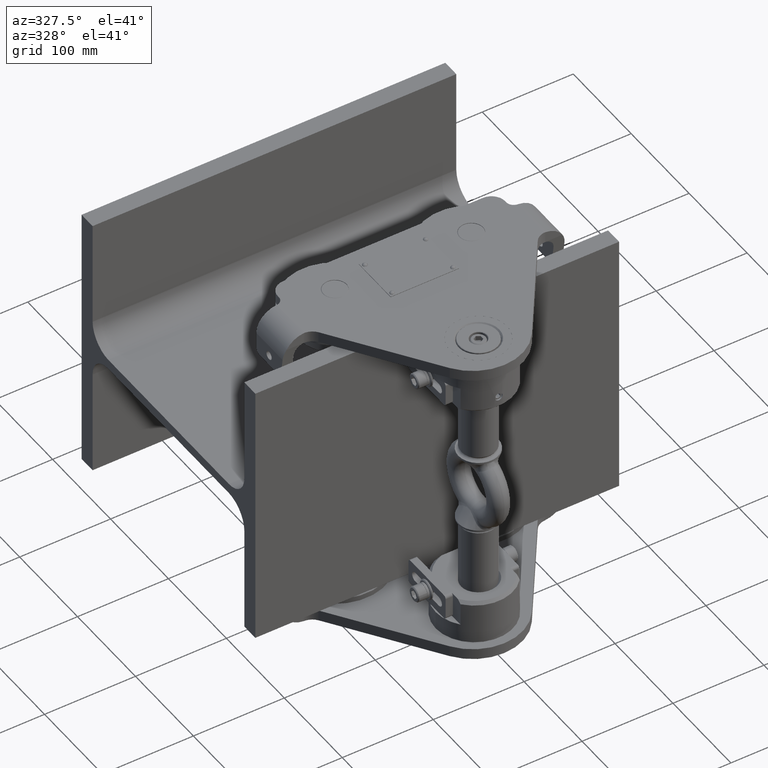
[diagram: clean part render]
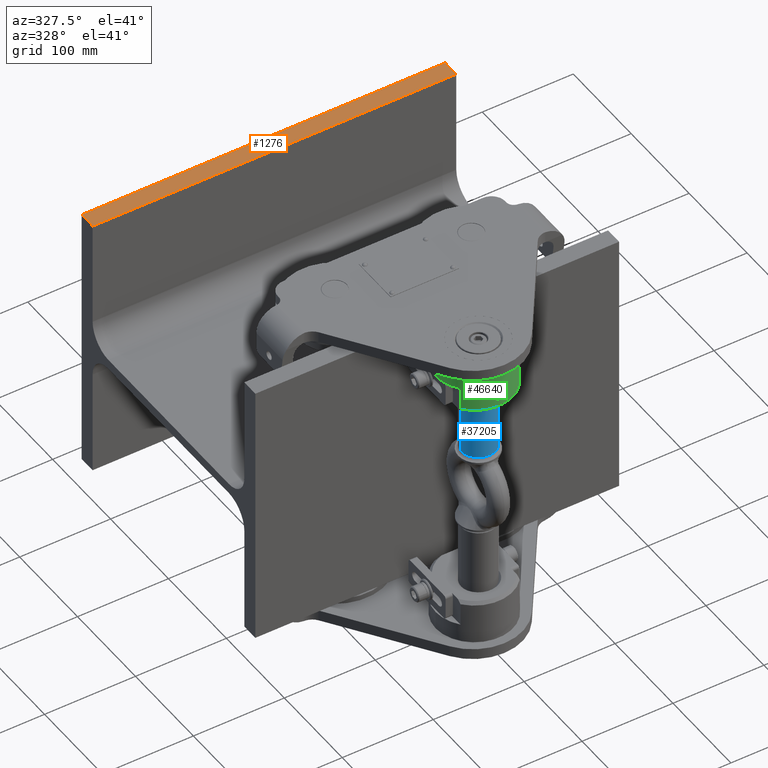
[diagram: same view with three faces highlighted in distinct colors, each labeled with its STEP entity id]
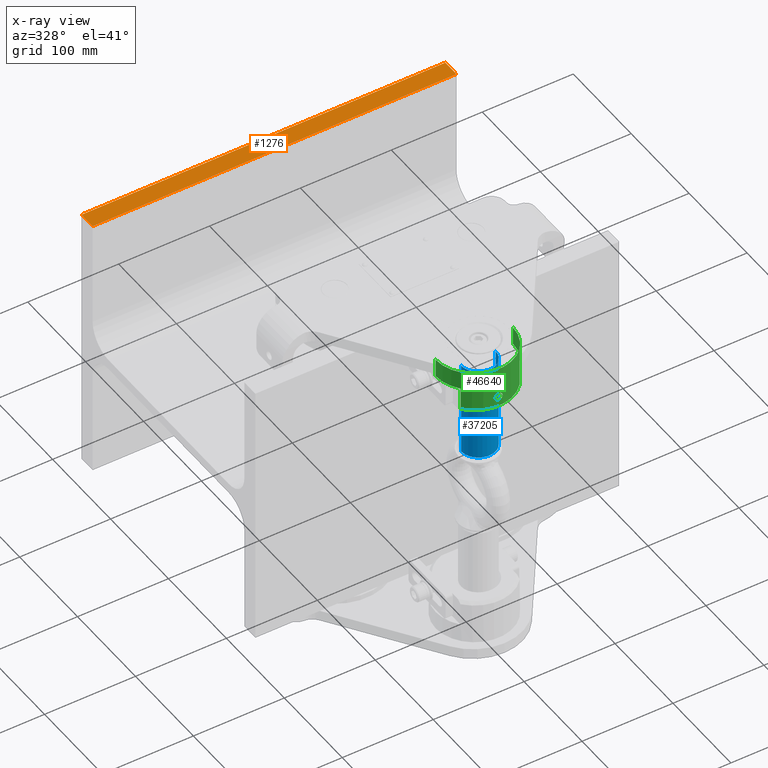
[diagram: x-ray of the same camera — body ghosted, the three highlighted faces saturated]
A machine part, auxiliary view with three faces highlighted in distinct colors.
The next image is the same camera in x-ray (body ghosted, the three faces saturated) — at least one of them is partly hidden behind the body in this view.
Their STEP definitions:

[orange] entity #1276 — the highlighted planar face has unit normal (-0, 0, 1).
#1276 = ADVANCED_FACE ( 'NONE', ( #43895 ), #45761, .T. ) ;
#2266 = CARTESIAN_POINT ( 'NONE',  ( 200.0000000000000600, 150.0000000000000300, 150.0000000000000900 ) ) ;
#8127 = ORIENTED_EDGE ( 'NONE', *, *, #50825, .T. ) ;
#8891 = CARTESIAN_POINT ( 'NONE',  ( -200.0000000000000900, 131.0000000000000000, 149.9999999999999400 ) ) ;
#10065 = EDGE_CURVE ( 'NONE', #13857, #27376, #49603, .T. ) ;
#12280 = CARTESIAN_POINT ( 'NONE',  ( 200.0000000000000600, 150.0000000000000300, 150.0000000000000900 ) ) ;
#13380 = CARTESIAN_POINT ( 'NONE',  ( 200.0000000000000600, 131.0000000000000000, 150.0000000000001400 ) ) ;
#13857 = VERTEX_POINT ( 'NONE', #28802 ) ;
#15226 = VERTEX_POINT ( 'NONE', #52639 ) ;
#18242 = VECTOR ( 'NONE', #38115, 1000.000000000000000 ) ;
#19171 = ORIENTED_EDGE ( 'NONE', *, *, #21352, .F. ) ;
#21352 = EDGE_CURVE ( 'NONE', #15226, #13857, #46617, .T. ) ;
#23562 = CARTESIAN_POINT ( 'NONE',  ( -200.0000000000000900, 150.0000000000000300, 149.9999999999998900 ) ) ;
#24954 = CARTESIAN_POINT ( 'NONE',  ( 200.0000000000000600, 131.0000000000000000, 150.0000000000001400 ) ) ;
#25341 = DIRECTION ( 'NONE',  ( 1.076019118127018400E-030, 1.000000000000000000, -2.921639538487251900E-015 ) ) ;
#25686 = VERTEX_POINT ( 'NONE', #12280 ) ;
#26046 = DIRECTION ( 'NONE',  ( -1.000000000000000000, -6.113781963198702100E-031, -4.634121278308743800E-016 ) ) ;
#26325 = VECTOR ( 'NONE', #27303, 1000.000000000000000 ) ;
#26588 = EDGE_LOOP ( 'NONE', ( #38610, #19171, #34478, #8127 ) ) ;
#27303 = DIRECTION ( 'NONE',  ( 1.076019118127018400E-030, 1.000000000000000000, -2.921639538487251100E-015 ) ) ;
#27376 = VERTEX_POINT ( 'NONE', #23562 ) ;
#28802 = CARTESIAN_POINT ( 'NONE',  ( -200.0000000000000900, 131.0000000000000000, 149.9999999999999400 ) ) ;
#29166 = DIRECTION ( 'NONE',  ( -4.634121278308748700E-016, 2.921639538487251900E-015, 1.000000000000000000 ) ) ;
#31285 = EDGE_CURVE ( 'NONE', #15226, #25686, #48523, .T. ) ;
#34478 = ORIENTED_EDGE ( 'NONE', *, *, #31285, .T. ) ;
#38115 = DIRECTION ( 'NONE',  ( 1.076019118127018400E-030, 1.000000000000000000, -2.921639538487251100E-015 ) ) ;
#38610 = ORIENTED_EDGE ( 'NONE', *, *, #10065, .F. ) ;
#40464 = VECTOR ( 'NONE', #44213, 1000.000000000000000 ) ;
#41415 = VECTOR ( 'NONE', #26046, 1000.000000000000000 ) ;
#43330 = CARTESIAN_POINT ( 'NONE',  ( 200.0000000000000600, 131.0000000000000000, 150.0000000000001400 ) ) ;
#43895 = FACE_OUTER_BOUND ( 'NONE', #26588, .T. ) ;
#44213 = DIRECTION ( 'NONE',  ( -1.000000000000000000, -6.113781963198702100E-031, -4.634121278308743800E-016 ) ) ;
#44758 = AXIS2_PLACEMENT_3D ( 'NONE', #24954, #29166, #25341 ) ;
#45761 = PLANE ( 'NONE',  #44758 ) ;
#46617 = LINE ( 'NONE', #13380, #41415 ) ;
#48523 = LINE ( 'NONE', #43330, #26325 ) ;
#49592 = LINE ( 'NONE', #2266, #40464 ) ;
#49603 = LINE ( 'NONE', #8891, #18242 ) ;
#50825 = EDGE_CURVE ( 'NONE', #25686, #27376, #49592, .T. ) ;
#52639 = CARTESIAN_POINT ( 'NONE',  ( 200.0000000000000600, 131.0000000000000000, 150.0000000000001400 ) ) ;

[blue] entity #37205 — the highlighted cylindrical surface (edge-blend (fillet) strip) has radius 19 mm, axis along (0, 0, 1).
#852 = EDGE_LOOP ( 'NONE', ( #959, #53917, #49703, #47090 ) ) ;
#959 = ORIENTED_EDGE ( 'NONE', *, *, #23643, .F. ) ;
#2005 = CARTESIAN_POINT ( 'NONE',  ( 19.00000000000002100, -220.9999999999999400, 167.4491825357096100 ) ) ;
#3140 = VECTOR ( 'NONE', #34636, 1000.000000000000000 ) ;
#4887 = EDGE_CURVE ( 'NONE', #25199, #23088, #41816, .T. ) ;
#5913 = DIRECTION ( 'NONE',  ( 4.087085498318080500E-018, 2.126349141558169100E-017, 1.000000000000000000 ) ) ;
#7226 = EDGE_CURVE ( 'NONE', #25179, #8617, #22024, .T. ) ;
#8617 = VERTEX_POINT ( 'NONE', #47396 ) ;
#10563 = CARTESIAN_POINT ( 'NONE',  ( -18.99999999999997200, -220.9999999999999400, 152.0000000000000000 ) ) ;
#11213 = CARTESIAN_POINT ( 'NONE',  ( 2.412251065895681500E-014, -220.9999999999999400, 152.0000000000000000 ) ) ;
#13095 = AXIS2_PLACEMENT_3D ( 'NONE', #14698, #18771, #26990 ) ;
#14698 = CARTESIAN_POINT ( 'NONE',  ( 2.369170522719570500E-014, -220.9999999999999400, 46.59348674296335000 ) ) ;
#15462 = LINE ( 'NONE', #2005, #3140 ) ;
#15673 = CYLINDRICAL_SURFACE ( 'NONE', #50381, 18.99999999999999600 ) ;
#16144 = DIRECTION ( 'NONE',  ( 4.087085498318080500E-018, 2.126349141558169100E-017, 1.000000000000000000 ) ) ;
#18108 = AXIS2_PLACEMENT_3D ( 'NONE', #11213, #16144, #36646 ) ;
#18771 = DIRECTION ( 'NONE',  ( 4.087085498318080500E-018, 2.126349141558169100E-017, 1.000000000000000000 ) ) ;
#19502 = CARTESIAN_POINT ( 'NONE',  ( -18.99999999999997200, -220.9999999999999400, 46.59348674296335000 ) ) ;
#22024 = CIRCLE ( 'NONE', #13095, 18.99999999999999600 ) ;
#23088 = VERTEX_POINT ( 'NONE', #53234 ) ;
#23643 = EDGE_CURVE ( 'NONE', #25179, #25199, #43847, .T. ) ;
#25179 = VERTEX_POINT ( 'NONE', #19502 ) ;
#25199 = VERTEX_POINT ( 'NONE', #10563 ) ;
#26990 = DIRECTION ( 'NONE',  ( 1.000000000000000000, 0.0000000000000000000, 0.0000000000000000000 ) ) ;
#28402 = EDGE_CURVE ( 'NONE', #8617, #23088, #15462, .T. ) ;
#32766 = VECTOR ( 'NONE', #47639, 1000.000000000000000 ) ;
#34035 = FACE_OUTER_BOUND ( 'NONE', #852, .T. ) ;
#34636 = DIRECTION ( 'NONE',  ( 4.087085498318080500E-018, 2.126349141558169100E-017, 1.000000000000000000 ) ) ;
#35649 = CARTESIAN_POINT ( 'NONE',  ( -18.99999999999997200, -220.9999999999999400, 167.4491825357096100 ) ) ;
#36646 = DIRECTION ( 'NONE',  ( 1.000000000000000000, 0.0000000000000000000, 0.0000000000000000000 ) ) ;
#37205 = ADVANCED_FACE ( 'NONE', ( #34035 ), #15673, .T. ) ;
#39736 = DIRECTION ( 'NONE',  ( 1.000000000000000000, 0.0000000000000000000, 0.0000000000000000000 ) ) ;
#41816 = CIRCLE ( 'NONE', #18108, 18.99999999999999600 ) ;
#43847 = LINE ( 'NONE', #35649, #32766 ) ;
#47090 = ORIENTED_EDGE ( 'NONE', *, *, #4887, .F. ) ;
#47396 = CARTESIAN_POINT ( 'NONE',  ( 19.00000000000002100, -220.9999999999999400, 46.59348674296335000 ) ) ;
#47639 = DIRECTION ( 'NONE',  ( 4.087085498318080500E-018, 2.126349141558169100E-017, 1.000000000000000000 ) ) ;
#49703 = ORIENTED_EDGE ( 'NONE', *, *, #28402, .T. ) ;
#50381 = AXIS2_PLACEMENT_3D ( 'NONE', #52255, #5913, #39736 ) ;
#52255 = CARTESIAN_POINT ( 'NONE',  ( 2.418565278885938000E-014, -220.9999999999999400, 167.4491825357096100 ) ) ;
#53234 = CARTESIAN_POINT ( 'NONE',  ( 19.00000000000002100, -220.9999999999999400, 152.0000000000000000 ) ) ;
#53917 = ORIENTED_EDGE ( 'NONE', *, *, #7226, .T. ) ;

[green] entity #46640 — the highlighted cylindrical surface (partial cylindrical patch) has radius 42.5 mm, axis along (0, 0, 1).
#1504 = CARTESIAN_POINT ( 'NONE',  ( 4.113741436895962200, -256.3004744586169700, 129.8964192280114100 ) ) ;
#1521 = VERTEX_POINT ( 'NONE', #53021 ) ;
#2779 = EDGE_CURVE ( 'NONE', #24720, #17881, #42685, .T. ) ;
#2817 = AXIS2_PLACEMENT_3D ( 'NONE', #38700, #25733, #46336 ) ;
#3305 = CARTESIAN_POINT ( 'NONE',  ( 0.5592997110778881200, -256.4971935456284200, 135.2221899552432400 ) ) ;
#3310 = CARTESIAN_POINT ( 'NONE',  ( -3.203074039423008400, -256.3795804443757300, 128.1929407294950600 ) ) ;
#3476 = CARTESIAN_POINT ( 'NONE',  ( 4.222903673579378600, -256.2897161565009000, 130.4451633631350900 ) ) ;
#3484 = CARTESIAN_POINT ( 'NONE',  ( -1.886690698255577300, -256.4588718067642500, 127.1816915554008500 ) ) ;
#3660 = CARTESIAN_POINT ( 'NONE',  ( -0.5587637638047552300, -256.4972153015639300, 126.7775836941741100 ) ) ;
#4050 = DIRECTION ( 'NONE',  ( 1.000000000000000000, 0.0000000000000000000, 0.0000000000000000000 ) ) ;
#4382 = LINE ( 'NONE', #11829, #19401 ) ;
#4667 = VERTEX_POINT ( 'NONE', #14300 ) ;
#5000 = ORIENTED_EDGE ( 'NONE', *, *, #2779, .T. ) ;
#5289 = CARTESIAN_POINT ( 'NONE',  ( 4.032092664168493100, -256.3084336528604600, 129.6283789889186800 ) ) ;
#6562 = CARTESIAN_POINT ( 'NONE',  ( 1.104265659023316400, -256.4865257790716600, 135.1134294134299100 ) ) ;
#6652 = EDGE_CURVE ( 'NONE', #53213, #4667, #46993, .T. ) ;
#6747 = CIRCLE ( 'NONE', #16873, 42.50000000000000700 ) ;
#6861 = CARTESIAN_POINT ( 'NONE',  ( -42.49999999999998600, -213.9999999999999400, 144.9999999999999700 ) ) ;
#6957 = EDGE_LOOP ( 'NONE', ( #43998, #25929, #8959, #30196, #5000, #53998, #41302, #11354 ) ) ;
#7676 = CARTESIAN_POINT ( 'NONE',  ( -3.199158122035978800, -256.3798773263722000, 133.8115167145387500 ) ) ;
#7854 = CARTESIAN_POINT ( 'NONE',  ( -4.222812056161555600, -256.2897243202519300, 130.4458583093291100 ) ) ;
#8387 = ORIENTED_EDGE ( 'NONE', *, *, #53238, .F. ) ;
#8777 = CIRCLE ( 'NONE', #2817, 42.50000000000000700 ) ;
#8939 = CARTESIAN_POINT ( 'NONE',  ( 42.50000000000002800, -213.9999999999999400, 144.9999999999999700 ) ) ;
#8959 = ORIENTED_EDGE ( 'NONE', *, *, #41484, .T. ) ;
#9200 = VERTEX_POINT ( 'NONE', #31604 ) ;
#9270 = CARTESIAN_POINT ( 'NONE',  ( 32.50000000000002100, -241.3861278752582700, 119.9999999999999600 ) ) ;
#10028 = CARTESIAN_POINT ( 'NONE',  ( 2.129462157080936900, -256.4472483325911900, 127.3115022410321900 ) ) ;
#10468 = B_SPLINE_CURVE_WITH_KNOTS ( 'NONE', 3,
 ( #42868, #14346, #43043, #30858, #47802, #47066, #10028, #30500, #22797, #47249, #51450, #27021, #26491, #5289, #1504, #3476, #10748, #39646, #31606, #15637, #40715, #14725, #14534, #20077, #32676, #49262, #40898, #15827, #45067, #23175, #6562, #3305, #35420, #48183 ),
 .UNSPECIFIED., .F., .F.,
 ( 4, 2, 2, 2, 2, 2, 2, 2, 2, 2, 2, 2, 2, 2, 2, 2, 4 ),
 ( 6.354774542720356000E-021, 0.0008309838469266175800, 0.001661967693853235200, 0.002492951540779852500, 0.003323935387706470300, 0.004154919234633088100, 0.004985903081559705000, 0.005816886928486322800, 0.006647870775412940600, 0.007478854622339558400, 0.008309838469266176200, 0.009140822316192794000, 0.009971806163119410100, 0.01080279001004602800, 0.01163377385697264600, 0.01246475770389926300, 0.01329574155082588100 ),
 .UNSPECIFIED. ) ;
#10748 = CARTESIAN_POINT ( 'NONE',  ( 4.249899030438258200, -256.2869762248533300, 130.7210645205954100 ) ) ;
#11354 = ORIENTED_EDGE ( 'NONE', *, *, #6652, .F. ) ;
#11373 = DIRECTION ( 'NONE',  ( 0.0000000000000000000, 0.0000000000000000000, 1.000000000000000000 ) ) ;
#11476 = CARTESIAN_POINT ( 'NONE',  ( -0.5532157461400517600, -256.4972842398142900, 135.2231032809801500 ) ) ;
#11488 = DIRECTION ( 'NONE',  ( 0.0000000000000000000, 0.0000000000000000000, 1.000000000000000000 ) ) ;
#11655 = CARTESIAN_POINT ( 'NONE',  ( -2.128484330360338500, -256.4473050994496400, 134.6891919347756400 ) ) ;
#11745 = CARTESIAN_POINT ( 'NONE',  ( 2.418565278885938000E-014, -213.9999999999999400, 119.9999999999999600 ) ) ;
#11818 = CARTESIAN_POINT ( 'NONE',  ( 2.417911307469326300E-014, -256.4999999999999400, 126.7499999999999700 ) ) ;
#11829 = CARTESIAN_POINT ( 'NONE',  ( -42.49999999999998600, -213.9999999999999400, 116.9999999999999600 ) ) ;
#12185 = CARTESIAN_POINT ( 'NONE',  ( -4.031598109703719700, -256.3084828868942400, 132.3734018208986600 ) ) ;
#12477 = DIRECTION ( 'NONE',  ( -0.0000000000000000000, -0.0000000000000000000, 1.000000000000000000 ) ) ;
#12706 = EDGE_CURVE ( 'NONE', #20881, #53213, #4382, .T. ) ;
#14300 = CARTESIAN_POINT ( 'NONE',  ( 42.50000000000002800, -213.9999999999999400, 164.9999999999999400 ) ) ;
#14346 = CARTESIAN_POINT ( 'NONE',  ( 0.2809963230356540300, -256.4999999999999400, 126.7499999999999400 ) ) ;
#14534 = CARTESIAN_POINT ( 'NONE',  ( 3.687361092865659700, -256.3400188322037300, 133.1313160691802300 ) ) ;
#14725 = CARTESIAN_POINT ( 'NONE',  ( 3.820426141059641200, -256.3280733098832200, 132.8826690259364500 ) ) ;
#15441 = FACE_BOUND ( 'NONE', #45030, .T. ) ;
#15637 = CARTESIAN_POINT ( 'NONE',  ( 4.113813327483136100, -256.3004671051182900, 132.1028638264547800 ) ) ;
#15827 = CARTESIAN_POINT ( 'NONE',  ( 2.132538931406973600, -256.4470891984154800, 134.6866509102921200 ) ) ;
#15955 = DIRECTION ( 'NONE',  ( 1.000000000000000000, 0.0000000000000000000, 0.0000000000000000000 ) ) ;
#16035 = CARTESIAN_POINT ( 'NONE',  ( 2.470612764550289700E-014, -256.4999999999999400, 135.2499999999999100 ) ) ;
#16873 = AXIS2_PLACEMENT_3D ( 'NONE', #34048, #12477, #50285 ) ;
#17881 = VERTEX_POINT ( 'NONE', #23037 ) ;
#18062 = CARTESIAN_POINT ( 'NONE',  ( -32.49999999999997900, -241.3861278752582700, 144.9999999999999700 ) ) ;
#18647 = EDGE_CURVE ( 'NONE', #9200, #24720, #44334, .T. ) ;
#19401 = VECTOR ( 'NONE', #11488, 1000.000000000000000 ) ;
#19697 = CARTESIAN_POINT ( 'NONE',  ( -42.49999999999998600, -213.9999999999999400, 164.9999999999999400 ) ) ;
#19898 = CARTESIAN_POINT ( 'NONE',  ( -4.250213759662883300, -256.2869445933832300, 130.7224989761447500 ) ) ;
#20077 = CARTESIAN_POINT ( 'NONE',  ( 3.379713000383214100, -256.3656861926675700, 133.5916558511819700 ) ) ;
#20881 = VERTEX_POINT ( 'NONE', #6861 ) ;
#22797 = CARTESIAN_POINT ( 'NONE',  ( 2.809898518612301600, -256.4074643866380300, 127.7994148794098000 ) ) ;
#23037 = CARTESIAN_POINT ( 'NONE',  ( 32.50000000000002100, -241.3861278752582700, 144.9999999999999700 ) ) ;
#23175 = CARTESIAN_POINT ( 'NONE',  ( 1.369226508050307200, -256.4787189669123100, 135.0330308563757700 ) ) ;
#24081 = CARTESIAN_POINT ( 'NONE',  ( -2.593193450203382900, -256.4214509827301100, 134.3787468691847100 ) ) ;
#24268 = CARTESIAN_POINT ( 'NONE',  ( -4.115171887866349500, -256.3003343376607900, 129.9024686754732400 ) ) ;
#24640 = CARTESIAN_POINT ( 'NONE',  ( -2.597860040264185200, -256.4211635079533900, 127.6248534268093500 ) ) ;
#24720 = VERTEX_POINT ( 'NONE', #9270 ) ;
#25733 = DIRECTION ( 'NONE',  ( 6.938893903907223400E-016, 0.0000000000000000000, 1.000000000000000000 ) ) ;
#25929 = ORIENTED_EDGE ( 'NONE', *, *, #44731, .T. ) ;
#26060 = B_SPLINE_CURVE_WITH_KNOTS ( 'NONE', 3,
 ( #16035, #53471, #11476, #53652, #36723, #28294, #11655, #24081, #45270, #7676, #45074, #33055, #44910, #12185, #28664, #40719, #49269, #19898, #7854, #24268, #49074, #45457, #53295, #37233, #3310, #28475, #24640, #41255, #3484, #41428, #36894, #3660, #32683, #11818 ),
 .UNSPECIFIED., .F., .F.,
 ( 4, 2, 2, 2, 2, 2, 2, 2, 2, 2, 2, 2, 2, 2, 2, 2, 4 ),
 ( 0.01329574155082588100, 0.01412653050474040700, 0.01495731945865493500, 0.01578810841256946000, 0.01661889736648399000, 0.01744968632039851600, 0.01828047527431304200, 0.01911126422822756800, 0.01994205318214209400, 0.02077284213605662400, 0.02160363108997115000, 0.02243442004388567600, 0.02326520899780020300, 0.02409599795171472900, 0.02492678690562925500, 0.02575757585954378100, 0.02658836481345831100 ),
 .UNSPECIFIED. ) ;
#26123 = CARTESIAN_POINT ( 'NONE',  ( 42.50000000000002800, -213.9999999999999400, 116.9999999999999600 ) ) ;
#26491 = CARTESIAN_POINT ( 'NONE',  ( 3.820123543102894400, -256.3280992430130100, 129.1169780760936300 ) ) ;
#26623 = VERTEX_POINT ( 'NONE', #29125 ) ;
#27021 = CARTESIAN_POINT ( 'NONE',  ( 3.688220454796646000, -256.3399495586827500, 128.8698300699910500 ) ) ;
#28294 = CARTESIAN_POINT ( 'NONE',  ( -1.881395643433668700, -256.4591079612863500, 134.8209242673323200 ) ) ;
#28398 = DIRECTION ( 'NONE',  ( -0.0000000000000000000, -0.0000000000000000000, 1.000000000000000000 ) ) ;
#28475 = CARTESIAN_POINT ( 'NONE',  ( -2.811517834769959200, -256.4073565482229400, 127.8008387794730700 ) ) ;
#28664 = CARTESIAN_POINT ( 'NONE',  ( -4.113609954794603700, -256.3004867602197100, 132.1033746328745900 ) ) ;
#29125 = CARTESIAN_POINT ( 'NONE',  ( 2.417911307469326300E-014, -256.4999999999999400, 126.7499999999999700 ) ) ;
#29727 = VECTOR ( 'NONE', #35646, 1000.000000000000000 ) ;
#30054 = ORIENTED_EDGE ( 'NONE', *, *, #38067, .F. ) ;
#30196 = ORIENTED_EDGE ( 'NONE', *, *, #18647, .T. ) ;
#30500 = CARTESIAN_POINT ( 'NONE',  ( 2.591349857660842000, -256.4215559120867200, 127.6199806640270000 ) ) ;
#30858 = CARTESIAN_POINT ( 'NONE',  ( 1.100727277265504100, -256.4866127894847500, 126.8856763968542500 ) ) ;
#30868 = VECTOR ( 'NONE', #45817, 1000.000000000000000 ) ;
#31604 = CARTESIAN_POINT ( 'NONE',  ( -32.49999999999997900, -241.3861278752582700, 119.9999999999999600 ) ) ;
#31606 = CARTESIAN_POINT ( 'NONE',  ( 4.222418424632306400, -256.2897642468233200, 131.5576301286749600 ) ) ;
#31878 = FACE_OUTER_BOUND ( 'NONE', #6957, .T. ) ;
#32676 = CARTESIAN_POINT ( 'NONE',  ( 3.204067460227432400, -256.3795175883631700, 133.8062785080314800 ) ) ;
#32683 = CARTESIAN_POINT ( 'NONE',  ( -0.2809304201663921900, -256.5000000000000600, 126.7500000000000000 ) ) ;
#33055 = CARTESIAN_POINT ( 'NONE',  ( -3.687306785379746100, -256.3400253921693700, 133.1315143222164500 ) ) ;
#34048 = CARTESIAN_POINT ( 'NONE',  ( 2.418565278885938000E-014, -213.9999999999999400, 144.9999999999999700 ) ) ;
#34943 = AXIS2_PLACEMENT_3D ( 'NONE', #37120, #37644, #4050 ) ;
#35420 = CARTESIAN_POINT ( 'NONE',  ( 0.2774627339564639800, -256.5000000000000000, 135.2500000000000000 ) ) ;
#35646 = DIRECTION ( 'NONE',  ( 0.0000000000000000000, 0.0000000000000000000, 1.000000000000000000 ) ) ;
#36723 = CARTESIAN_POINT ( 'NONE',  ( -1.369916989692496500, -256.4786867249524700, 135.0326714799462600 ) ) ;
#36894 = CARTESIAN_POINT ( 'NONE',  ( -1.108295493586611600, -256.4864355580709800, 126.8874949845207900 ) ) ;
#37120 = CARTESIAN_POINT ( 'NONE',  ( 2.418565278885938000E-014, -213.9999999999999400, 116.9999999999999600 ) ) ;
#37233 = CARTESIAN_POINT ( 'NONE',  ( -3.382294987390368000, -256.3654806783209200, 128.4116348362166800 ) ) ;
#37239 = AXIS2_PLACEMENT_3D ( 'NONE', #41020, #49189, #49730 ) ;
#37336 = VERTEX_POINT ( 'NONE', #18062 ) ;
#37644 = DIRECTION ( 'NONE',  ( 0.0000000000000000000, 0.0000000000000000000, 1.000000000000000000 ) ) ;
#38067 = EDGE_CURVE ( 'NONE', #26623, #1521, #10468, .T. ) ;
#38700 = CARTESIAN_POINT ( 'NONE',  ( 2.418565278885938000E-014, -213.9999999999999400, 145.0000000000000000 ) ) ;
#38771 = VECTOR ( 'NONE', #11373, 1000.000000000000000 ) ;
#39646 = CARTESIAN_POINT ( 'NONE',  ( 4.250100409588156900, -256.2869559854886500, 131.2758501024274600 ) ) ;
#40715 = CARTESIAN_POINT ( 'NONE',  ( 4.033482987721089200, -256.3083025068828000, 132.3678865260968100 ) ) ;
#40719 = CARTESIAN_POINT ( 'NONE',  ( -4.222025414307315900, -256.2898033621894500, 131.5601105619424800 ) ) ;
#40898 = CARTESIAN_POINT ( 'NONE',  ( 2.592711080147043200, -256.4214680670894500, 134.3789001884055100 ) ) ;
#41020 = CARTESIAN_POINT ( 'NONE',  ( 2.418565278885938000E-014, -213.9999999999999400, 164.9999999999999400 ) ) ;
#41255 = CARTESIAN_POINT ( 'NONE',  ( -2.133864998505365000, -256.4470329979078000, 127.3139300946027100 ) ) ;
#41302 = ORIENTED_EDGE ( 'NONE', *, *, #46922, .T. ) ;
#41428 = CARTESIAN_POINT ( 'NONE',  ( -1.375611202332373700, -256.4785015121076400, 126.9692711590831400 ) ) ;
#41484 = EDGE_CURVE ( 'NONE', #37336, #9200, #41927, .T. ) ;
#41927 = LINE ( 'NONE', #50010, #30868 ) ;
#42685 = LINE ( 'NONE', #49340, #38771 ) ;
#42847 = CYLINDRICAL_SURFACE ( 'NONE', #34943, 42.50000000000000700 ) ;
#42868 = CARTESIAN_POINT ( 'NONE',  ( 2.417911307469326300E-014, -256.4999999999999400, 126.7499999999999700 ) ) ;
#43043 = CARTESIAN_POINT ( 'NONE',  ( 0.5572615172098824800, -256.4972155142423800, 126.7775932394243100 ) ) ;
#43998 = ORIENTED_EDGE ( 'NONE', *, *, #12706, .F. ) ;
#44176 = VERTEX_POINT ( 'NONE', #8939 ) ;
#44334 = CIRCLE ( 'NONE', #49746, 42.50000000000000700 ) ;
#44731 = EDGE_CURVE ( 'NONE', #20881, #37336, #6747, .T. ) ;
#44910 = CARTESIAN_POINT ( 'NONE',  ( -3.817968792184877300, -256.3282957584014000, 132.8876255406507000 ) ) ;
#45030 = EDGE_LOOP ( 'NONE', ( #30054, #8387 ) ) ;
#45067 = CARTESIAN_POINT ( 'NONE',  ( 1.884004569558187100, -256.4590022619721000, 134.8197703989521600 ) ) ;
#45074 = CARTESIAN_POINT ( 'NONE',  ( -3.378659308536416300, -256.3657720667980600, 133.5931150981323000 ) ) ;
#45270 = CARTESIAN_POINT ( 'NONE',  ( -2.807127110694633400, -256.4076485114719000, 134.2030105073699800 ) ) ;
#45457 = CARTESIAN_POINT ( 'NONE',  ( -3.820609020291772000, -256.3280567823929300, 129.1176946207469900 ) ) ;
#45817 = DIRECTION ( 'NONE',  ( -0.0000000000000000000, -0.0000000000000000000, -1.000000000000000000 ) ) ;
#46336 = DIRECTION ( 'NONE',  ( -1.000000000000000000, 0.0000000000000000000, 6.530723674265625200E-016 ) ) ;
#46640 = ADVANCED_FACE ( 'NONE', ( #31878, #15441 ), #42847, .T. ) ;
#46922 = EDGE_CURVE ( 'NONE', #44176, #4667, #51284, .T. ) ;
#46993 = CIRCLE ( 'NONE', #37239, 42.50000000000000700 ) ;
#47066 = CARTESIAN_POINT ( 'NONE',  ( 1.885402336709831600, -256.4589398136932900, 127.1809214600452000 ) ) ;
#47249 = CARTESIAN_POINT ( 'NONE',  ( 3.201676450744455900, -256.3796865643627100, 128.1913450365359200 ) ) ;
#47802 = CARTESIAN_POINT ( 'NONE',  ( 1.370757752028389100, -256.4786691794759000, 126.9674913452208900 ) ) ;
#48183 = CARTESIAN_POINT ( 'NONE',  ( 2.470612764550289700E-014, -256.4999999999999400, 135.2499999999999100 ) ) ;
#49074 = CARTESIAN_POINT ( 'NONE',  ( -4.033649341924045100, -256.3082866262133200, 129.6325937644227800 ) ) ;
#49189 = DIRECTION ( 'NONE',  ( 0.0000000000000000000, 0.0000000000000000000, 1.000000000000000000 ) ) ;
#49262 = CARTESIAN_POINT ( 'NONE',  ( 2.807273034295056000, -256.4076499870364500, 134.2031961328097200 ) ) ;
#49269 = CARTESIAN_POINT ( 'NONE',  ( -4.249783747853594000, -256.2869878111833400, 131.2840104180269800 ) ) ;
#49340 = CARTESIAN_POINT ( 'NONE',  ( 32.50000000000002100, -241.3861278752582700, 116.9999999999999600 ) ) ;
#49730 = DIRECTION ( 'NONE',  ( 1.000000000000000000, 0.0000000000000000000, 0.0000000000000000000 ) ) ;
#49746 = AXIS2_PLACEMENT_3D ( 'NONE', #11745, #28398, #15955 ) ;
#50010 = CARTESIAN_POINT ( 'NONE',  ( -32.49999999999997900, -241.3861278752582700, 116.9999999999999600 ) ) ;
#50285 = DIRECTION ( 'NONE',  ( -1.000000000000000000, 0.0000000000000000000, 0.0000000000000000000 ) ) ;
#51284 = LINE ( 'NONE', #26123, #29727 ) ;
#51450 = CARTESIAN_POINT ( 'NONE',  ( 3.377538302654454300, -256.3658651955683500, 128.4052304402901500 ) ) ;
#52432 = EDGE_CURVE ( 'NONE', #17881, #44176, #8777, .T. ) ;
#53021 = CARTESIAN_POINT ( 'NONE',  ( 2.470612764550289700E-014, -256.4999999999999400, 135.2499999999999100 ) ) ;
#53213 = VERTEX_POINT ( 'NONE', #19697 ) ;
#53238 = EDGE_CURVE ( 'NONE', #1521, #26623, #26060, .T. ) ;
#53295 = CARTESIAN_POINT ( 'NONE',  ( -3.690237910210373500, -256.3397687364133600, 128.8735715932910200 ) ) ;
#53471 = CARTESIAN_POINT ( 'NONE',  ( -0.2773976598299306400, -256.4999999999999400, 135.2499999999999400 ) ) ;
#53652 = CARTESIAN_POINT ( 'NONE',  ( -1.101620387055190600, -256.4866055121395300, 135.1142534567556800 ) ) ;
#53998 = ORIENTED_EDGE ( 'NONE', *, *, #52432, .T. ) ;